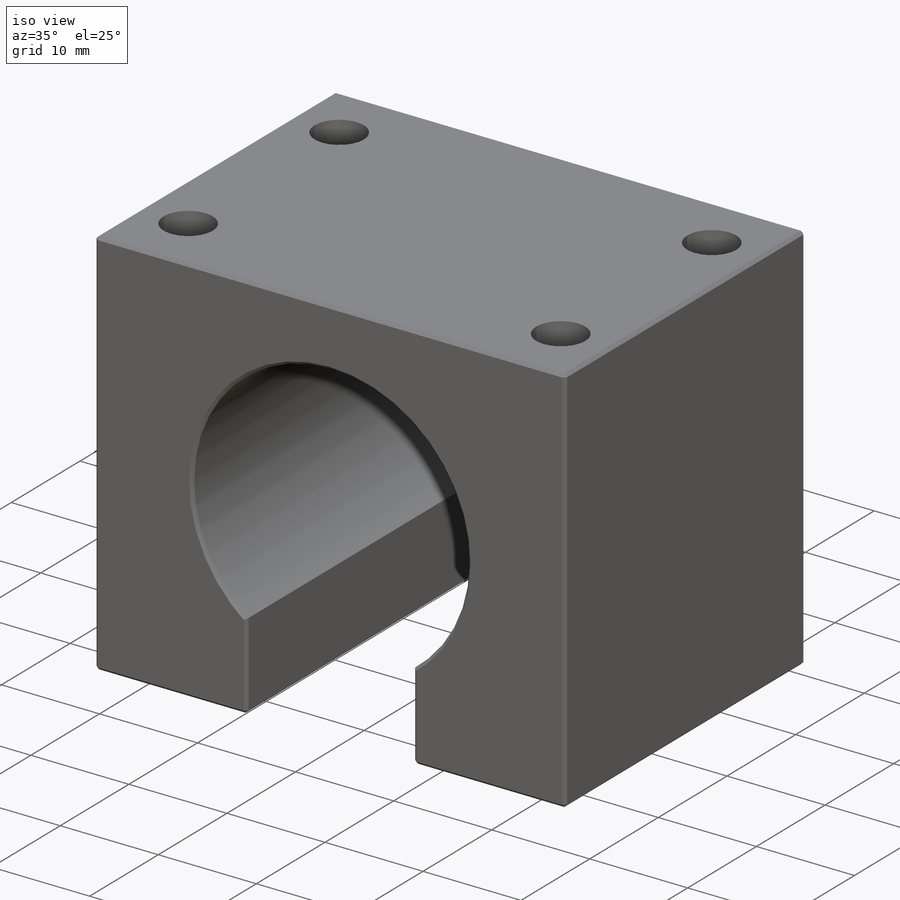
[diagram: iso view]
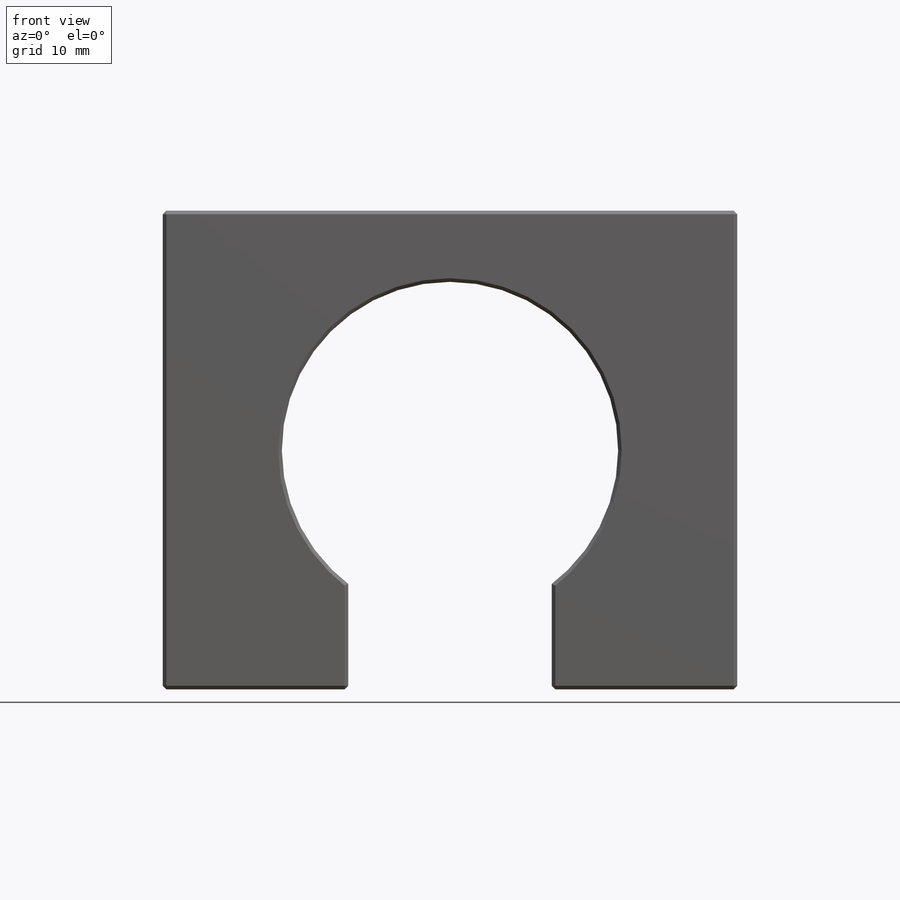
[diagram: front view]
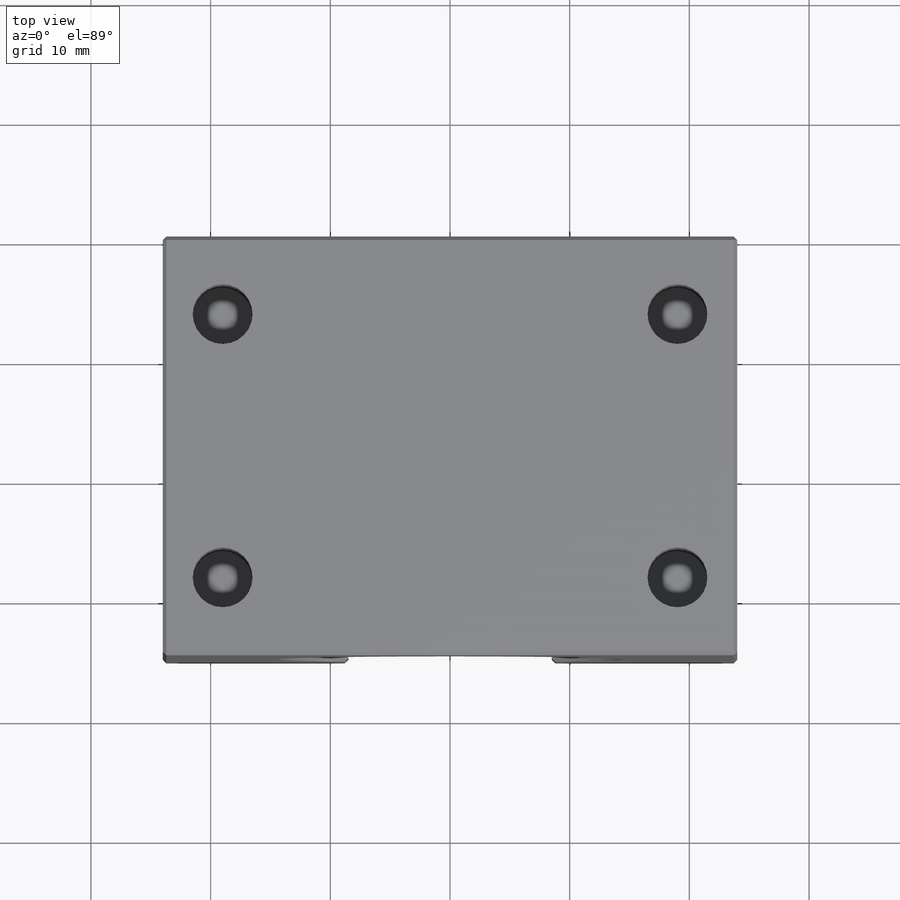
[diagram: top view]
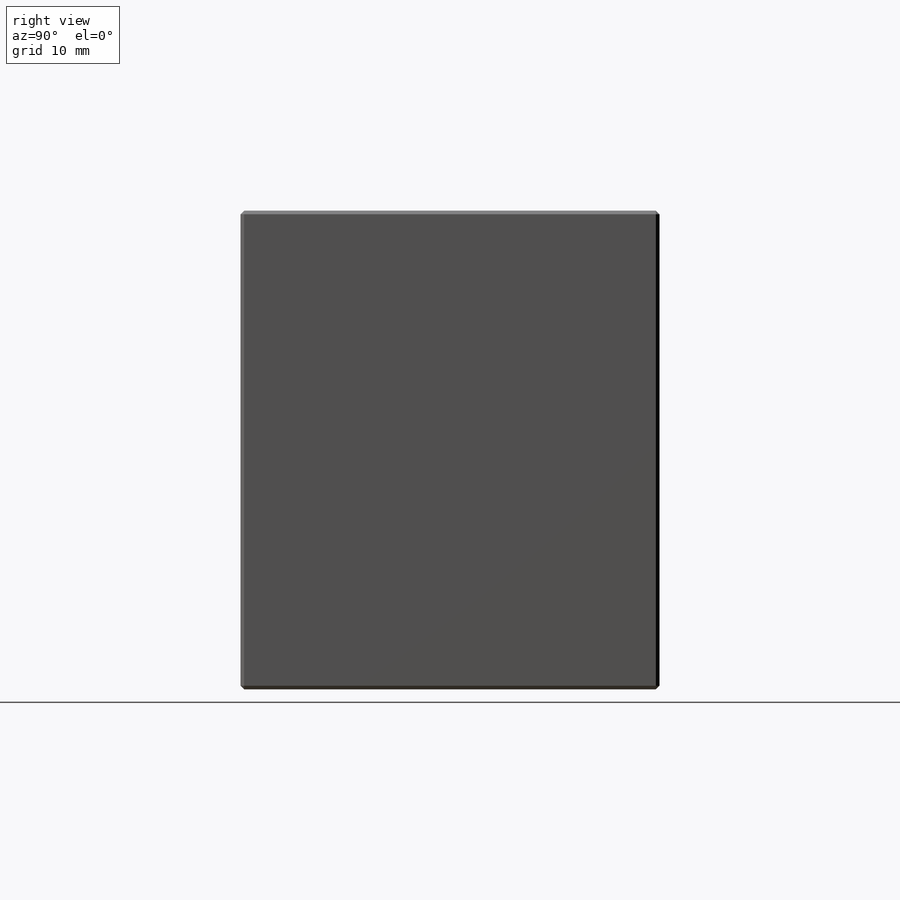
[diagram: right view]
SOLIDWORKS PART (.sldprt)
format: sldprt  version: not decoded by parser v0  size: 239,616 bytes
history: native  units: mm
features: sketch x3, chamfer x2, cut_extrude x2, material x1, extrude x1 (+11 scaffold rows collapsed)
feature tree (20):
  scaffold x11  (default folders/planes/origin — collapsed)
  material  "1060 Alloy"
  sketch  "Sketch1"  dims[D5=28.1mm D1=24.0mm D2=40.0mm D3=8.5mm D4=20.0mm]
  extrude  "Boss-Extrude1"  Depth=35mm
  chamfer  "Chamfer2"  Distance=0.3mm Angle=45deg
  sketch  "Sketch2"  dims[c1.D3=5.0mm c1.D1=38.0mm c1.D2=22.0mm c2.D3=6.5mm]
  cut_extrude  "Cut-Extrude1"  Depth=17mm
  sketch  "Sketch3"  dims[c1.D2=38.0mm c1.D4=5.0mm c1.D1=40.0mm c1.D3=20.0mm c2.D4=~7.707464mm c2.D5=~13.435029mm c2.D3=45.0deg]
  cut_extrude  "Cut-Extrude2"  Depth=20mm
  chamfer  "Chamfer3"  Distance=0.5mm Angle=45deg
decode coverage: 8 of 8 modeling features carry decoded parameters
note: ~ marks probable driven/reference dimensions
note: suppression state not decoded; provenance and decode notes live in map.json
